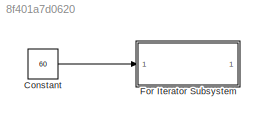
MODEL slx_8f401a7d0620
KIND model
BLOCK [Constant] Constant
  Value = 60
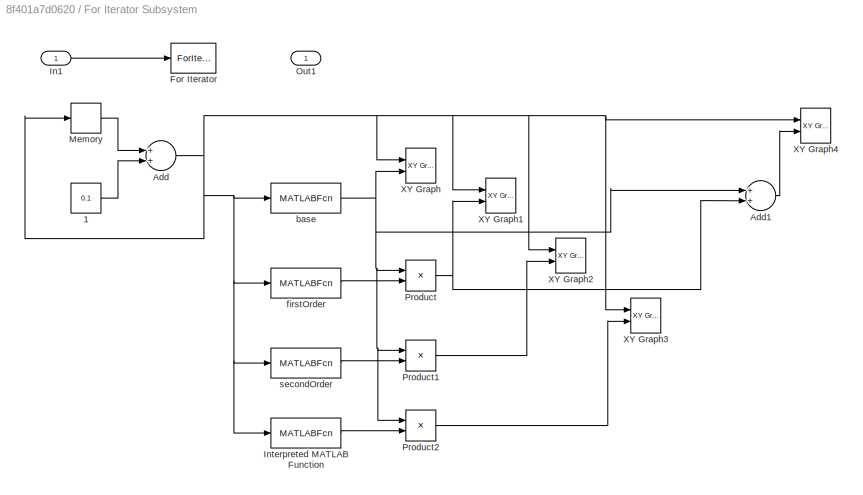
BLOCK [SubSystem] For Iterator Subsystem
  FunctionWithSeparateData = off
  MaskHideContents = off
  MinAlgLoopOccurrences = off
  Opaque = off
  Ports = [1, 1]
  PropExecContextOutsideSubsystem = off
  RTWSystemCode = Auto
  RequestExecContextInheritance = off
  TreatAsAtomicUnit = on
BLOCK [Constant] For Iterator Subsystem/1
  Value = 0.1
BLOCK [Sum] For Iterator Subsystem/Add
  InputSameDT = off
  OutDataTypeStr = Inherit: Inherit via internal rule
  Ports = [2, 1]
  SaturateOnIntegerOverflow = off
BLOCK [Sum] For Iterator Subsystem/Add1
  InputSameDT = off
  OutDataTypeStr = Inherit: Inherit via internal rule
  Ports = [2, 1]
  SaturateOnIntegerOverflow = off
BLOCK [ForIterator] For Iterator Subsystem/For Iterator
  IterationSource = external
  Ports = [1, 1]
  ResetStates = reset
BLOCK [Inport] For Iterator Subsystem/In1
  IconDisplay = Port number
BLOCK [MATLABFcn] For Iterator Subsystem/Interpreted MATLAB Function
  MATLABFcn = thirdOrder
  Ports = [1, 1]
BLOCK [Memory] For Iterator Subsystem/Memory
  InheritSampleTime = on
  X0 = -3.1
BLOCK [Outport] For Iterator Subsystem/Out1
  IconDisplay = Port number
BLOCK [Product] For Iterator Subsystem/Product
  InputSameDT = off
  OutDataTypeStr = Inherit: Inherit via internal rule
  Ports = [2, 1]
  SaturateOnIntegerOverflow = off
BLOCK [Product] For Iterator Subsystem/Product1
  InputSameDT = off
  OutDataTypeStr = Inherit: Inherit via internal rule
  Ports = [2, 1]
  SaturateOnIntegerOverflow = off
BLOCK [Product] For Iterator Subsystem/Product2
  InputSameDT = off
  OutDataTypeStr = Inherit: Inherit via internal rule
  Ports = [2, 1]
  SaturateOnIntegerOverflow = off
BLOCK [Reference] For Iterator Subsystem/XY Graph  REF=simulink/Sinks/XY Graph
  Ports = [2]
  SourceBlock = simulink/Sinks/XY Graph
  SourceType = XY scope.
  st = -1
  xmax = 3
  xmin = -3
  ymax = 1
  ymin = 0
BLOCK [Reference] For Iterator Subsystem/XY Graph1  REF=simulink/Sinks/XY Graph
  Ports = [2]
  SourceBlock = simulink/Sinks/XY Graph
  SourceType = XY scope.
  st = -1
  xmax = 3
  xmin = -3
  ymax = 1.6
  ymin = -1.6
BLOCK [Reference] For Iterator Subsystem/XY Graph2  REF=simulink/Sinks/XY Graph
  Ports = [2]
  SourceBlock = simulink/Sinks/XY Graph
  SourceType = XY scope.
  st = -1
  xmax = 3
  xmin = -3
  ymax = 3
  ymin = -6.5
BLOCK [Reference] For Iterator Subsystem/XY Graph3  REF=simulink/Sinks/XY Graph
  Ports = [2]
  SourceBlock = simulink/Sinks/XY Graph
  SourceType = XY scope.
  st = -1
  xmax = 3
  xmin = -3
  ymax = 22
  ymin = -22
BLOCK [Reference] For Iterator Subsystem/XY Graph4  REF=simulink/Sinks/XY Graph
  Ports = [2]
  SourceBlock = simulink/Sinks/XY Graph
  SourceType = XY scope.
  st = -1
  xmax = 3
  xmin = -3
  ymax = 22
  ymin = -22
BLOCK [MATLABFcn] For Iterator Subsystem/base
  MATLABFcn = base
  Ports = [1, 1]
BLOCK [MATLABFcn] For Iterator Subsystem/firstOrder
  MATLABFcn = firstOrder
  Ports = [1, 1]
BLOCK [MATLABFcn] For Iterator Subsystem/secondOrder
  MATLABFcn = secondOrder
  Ports = [1, 1]
LINE Constant:1 -> For Iterator Subsystem:1
LINE For Iterator Subsystem/1:1 -> For Iterator Subsystem/Add:2
LINE For Iterator Subsystem/Add1:1 -> For Iterator Subsystem/XY Graph4:2
NET For Iterator Subsystem/Add:1 -> For Iterator Subsystem/Interpreted MATLAB Function:1, For Iterator Subsystem/Memory:1, For Iterator Subsystem/XY Graph1:1, For Iterator Subsystem/XY Graph2:1, For Iterator Subsystem/XY Graph3:1, For Iterator Subsystem/XY Graph4:1, For Iterator Subsystem/XY Graph:1, For Iterator Subsystem/base:1, For Iterator Subsystem/firstOrder:1, For Iterator Subsystem/secondOrder:1
LINE For Iterator Subsystem/In1:1 -> For Iterator Subsystem/For Iterator:1
LINE For Iterator Subsystem/Interpreted MATLAB Function:1 -> For Iterator Subsystem/Product2:2
LINE For Iterator Subsystem/Memory:1 -> For Iterator Subsystem/Add:1
LINE For Iterator Subsystem/Product1:1 -> For Iterator Subsystem/XY Graph2:2
LINE For Iterator Subsystem/Product2:1 -> For Iterator Subsystem/XY Graph3:2
NET For Iterator Subsystem/Product:1 -> For Iterator Subsystem/Add1:2, For Iterator Subsystem/XY Graph1:2
NET For Iterator Subsystem/base:1 -> For Iterator Subsystem/Add1:1, For Iterator Subsystem/Product1:1, For Iterator Subsystem/Product2:1, For Iterator Subsystem/Product:1, For Iterator Subsystem/XY Graph:2
LINE For Iterator Subsystem/firstOrder:1 -> For Iterator Subsystem/Product:2
LINE For Iterator Subsystem/secondOrder:1 -> For Iterator Subsystem/Product1:2
note: NET lines group one-source signal fan-out (src -> all destinations, sorted); 1:1 wires keep LINE
